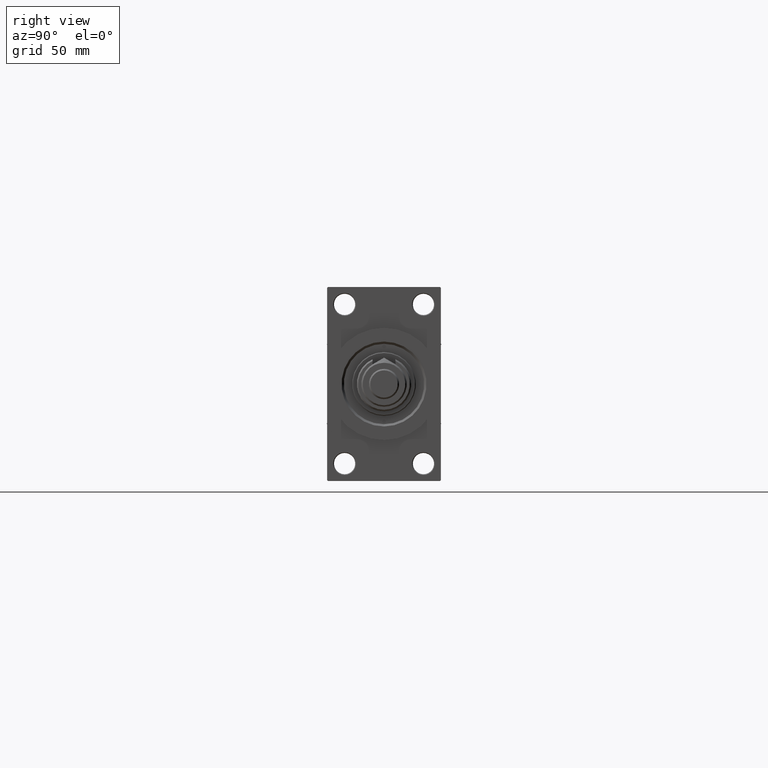
[diagram: clean part render]
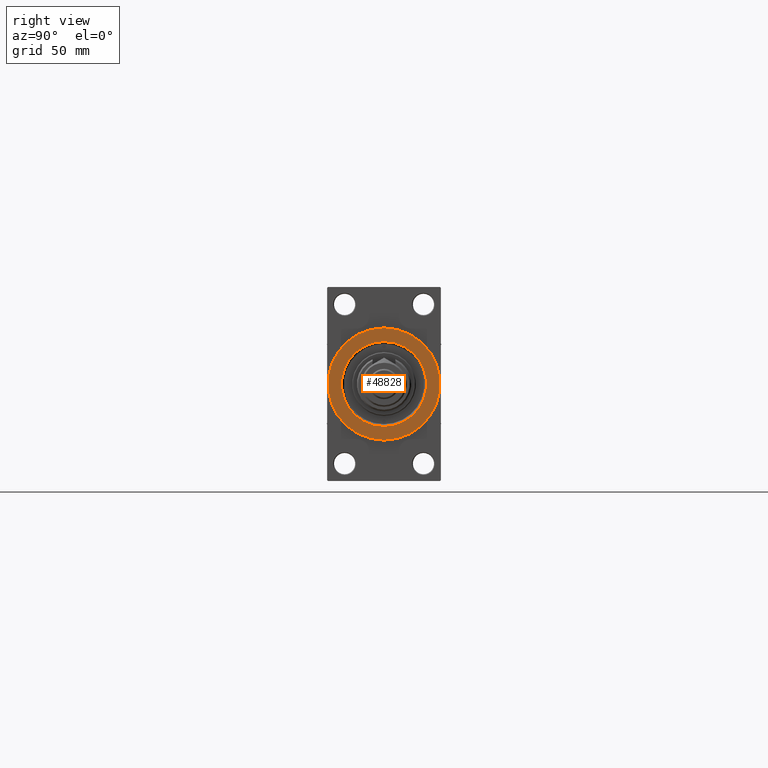
[diagram: same view with one face highlighted and labeled with its STEP entity id]
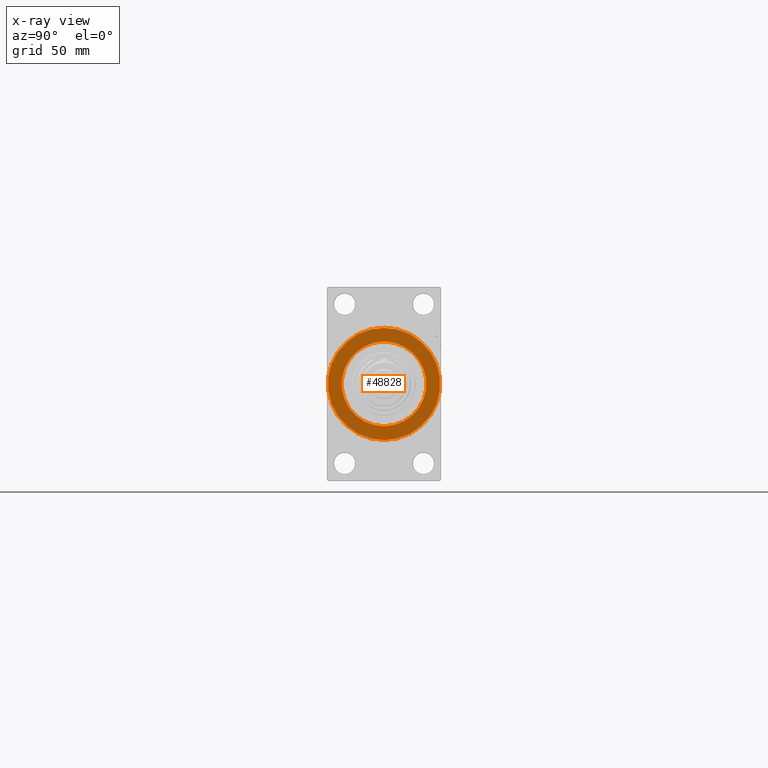
[diagram: x-ray of the same camera — body ghosted, the highlighted face saturated]
A machine part, right view. The second image highlights one B-rep face of the part: STEP entity #48828.
The next image is the same camera in x-ray: the body ghosted, the highlighted face saturated — about 0% of this face is hidden behind the body in this view.
In plain terms, the highlighted planar face has unit normal (1, 0, 0).
Its self-contained STEP definition (entity closure, byte-faithful):
#396 = EDGE_CURVE ( 'NONE', #10306, #38713, #28435, .T. ) ;
#954 = CIRCLE ( 'NONE', #11483, 27.99999999999996803 ) ;
#3789 = CARTESIAN_POINT ( 'NONE',  ( 333.9999999999999432, 3.429011037612585332E-15, 27.99999999999996803 ) ) ;
#4085 = EDGE_CURVE ( 'NONE', #22793, #25812, #954, .T. ) ;
#7915 = EDGE_CURVE ( 'NONE', #25812, #22793, #20562, .T. ) ;
#8642 = CARTESIAN_POINT ( 'NONE',  ( 333.9999999999999432, 4.531193156845206793E-15, -37.00000000000000000 ) ) ;
#9717 = CARTESIAN_POINT ( 'NONE',  ( 333.9999999999999432, 0.000000000000000000, 0.000000000000000000 ) ) ;
#10306 = VERTEX_POINT ( 'NONE', #8642 ) ;
#11483 = AXIS2_PLACEMENT_3D ( 'NONE', #48556, #41435, #26187 ) ;
#13559 = DIRECTION ( 'NONE',  ( 0.000000000000000000, 0.000000000000000000, -1.000000000000000000 ) ) ;
#14037 = DIRECTION ( 'NONE',  ( 1.000000000000000000, 0.000000000000000000, 0.000000000000000000 ) ) ;
#14391 = PLANE ( 'NONE',  #36930 ) ;
#14633 = FACE_OUTER_BOUND ( 'NONE', #43181, .T. ) ;
#15151 = CARTESIAN_POINT ( 'NONE',  ( 333.9999999999999432, 0.000000000000000000, 0.000000000000000000 ) ) ;
#16656 = CIRCLE ( 'NONE', #49775, 37.00000000000000000 ) ;
#18702 = DIRECTION ( 'NONE',  ( 1.000000000000000000, 0.000000000000000000, 0.000000000000000000 ) ) ;
#20562 = CIRCLE ( 'NONE', #29497, 27.99999999999996803 ) ;
#22253 = CARTESIAN_POINT ( 'NONE',  ( 333.9999999999999432, 0.000000000000000000, 0.000000000000000000 ) ) ;
#22752 = DIRECTION ( 'NONE',  ( 0.000000000000000000, 0.000000000000000000, -1.000000000000000000 ) ) ;
#22793 = VERTEX_POINT ( 'NONE', #34408 ) ;
#25812 = VERTEX_POINT ( 'NONE', #3789 ) ;
#25823 = DIRECTION ( 'NONE',  ( 0.000000000000000000, 0.000000000000000000, -1.000000000000000000 ) ) ;
#26187 = DIRECTION ( 'NONE',  ( 0.000000000000000000, 0.000000000000000000, -1.000000000000000000 ) ) ;
#26743 = ORIENTED_EDGE ( 'NONE', *, *, #396, .T. ) ;
#28435 = CIRCLE ( 'NONE', #29214, 37.00000000000000000 ) ;
#29214 = AXIS2_PLACEMENT_3D ( 'NONE', #29643, #45150, #25823 ) ;
#29497 = AXIS2_PLACEMENT_3D ( 'NONE', #22253, #33428, #22752 ) ;
#29643 = CARTESIAN_POINT ( 'NONE',  ( 333.9999999999999432, 0.000000000000000000, 0.000000000000000000 ) ) ;
#33048 = ORIENTED_EDGE ( 'NONE', *, *, #4085, .T. ) ;
#33428 = DIRECTION ( 'NONE',  ( -1.000000000000000000, -0.000000000000000000, -0.000000000000000000 ) ) ;
#34408 = CARTESIAN_POINT ( 'NONE',  ( 333.9999999999999432, 0.000000000000000000, -27.99999999999996803 ) ) ;
#35071 = CARTESIAN_POINT ( 'NONE',  ( 333.9999999999999432, 0.000000000000000000, 37.00000000000000000 ) ) ;
#35334 = ORIENTED_EDGE ( 'NONE', *, *, #7915, .T. ) ;
#36930 = AXIS2_PLACEMENT_3D ( 'NONE', #15151, #18702, #45898 ) ;
#36959 = EDGE_CURVE ( 'NONE', #38713, #10306, #16656, .T. ) ;
#37011 = EDGE_LOOP ( 'NONE', ( #33048, #35334 ) ) ;
#38713 = VERTEX_POINT ( 'NONE', #35071 ) ;
#41435 = DIRECTION ( 'NONE',  ( -1.000000000000000000, -0.000000000000000000, -0.000000000000000000 ) ) ;
#42336 = FACE_BOUND ( 'NONE', #37011, .T. ) ;
#43181 = EDGE_LOOP ( 'NONE', ( #50262, #26743 ) ) ;
#45150 = DIRECTION ( 'NONE',  ( 1.000000000000000000, 0.000000000000000000, 0.000000000000000000 ) ) ;
#45898 = DIRECTION ( 'NONE',  ( 0.000000000000000000, 0.000000000000000000, -1.000000000000000000 ) ) ;
#48556 = CARTESIAN_POINT ( 'NONE',  ( 333.9999999999999432, 0.000000000000000000, 0.000000000000000000 ) ) ;
#48828 = ADVANCED_FACE ( 'NONE', ( #42336, #14633 ), #14391, .T. ) ;
#49775 = AXIS2_PLACEMENT_3D ( 'NONE', #9717, #14037, #13559 ) ;
#50262 = ORIENTED_EDGE ( 'NONE', *, *, #36959, .T. ) ;